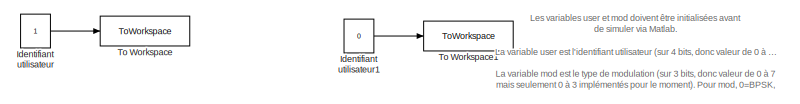
[diagram: root canvas - part 1/4, top left region]
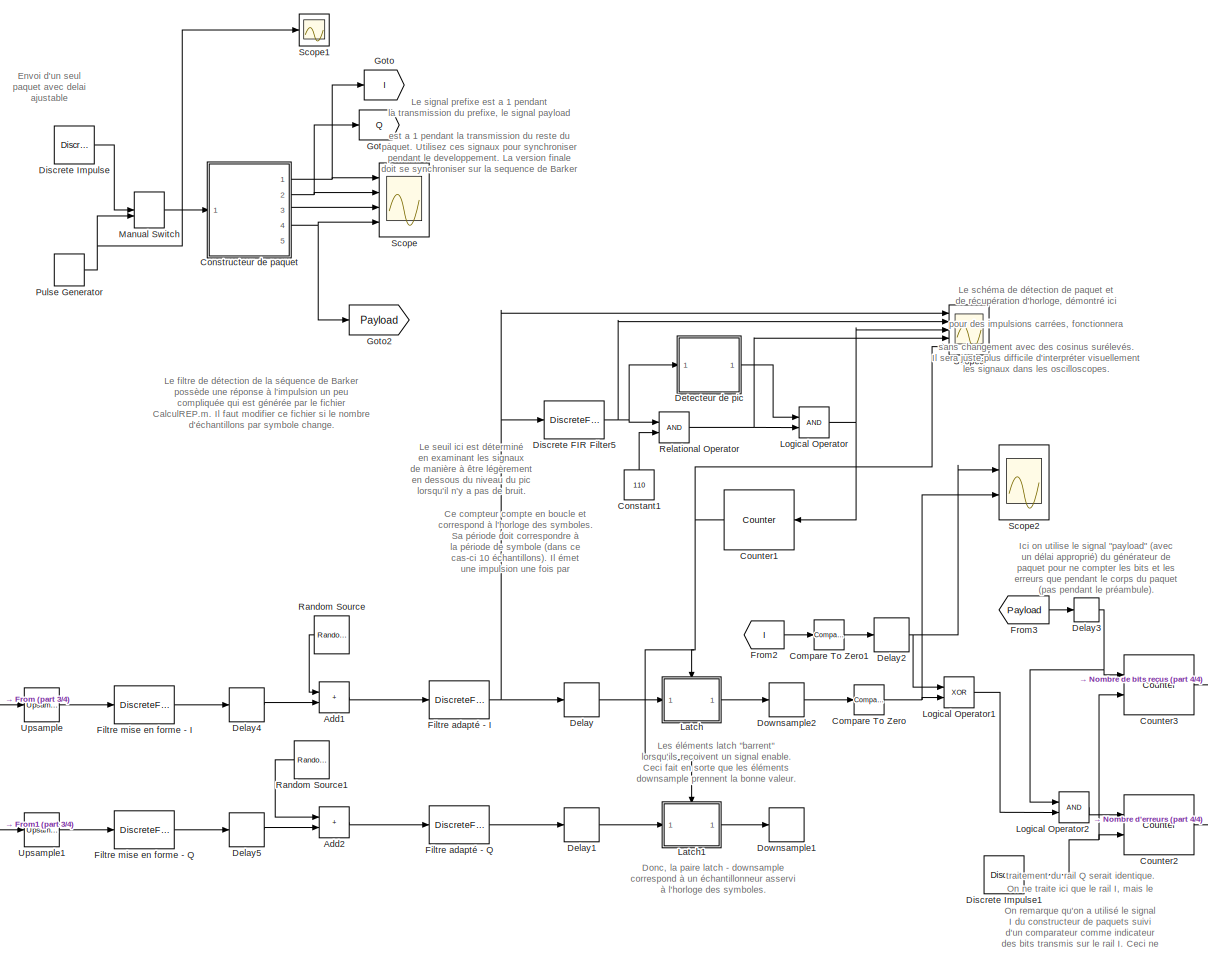
[diagram: root canvas - part 2/4, most of the canvas]
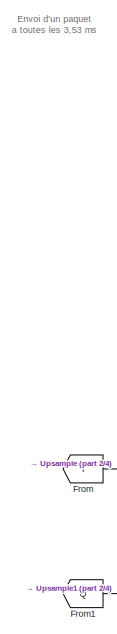
[diagram: root canvas - part 3/4, middle left region]
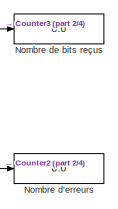
[diagram: root canvas - part 4/4, bottom right region]
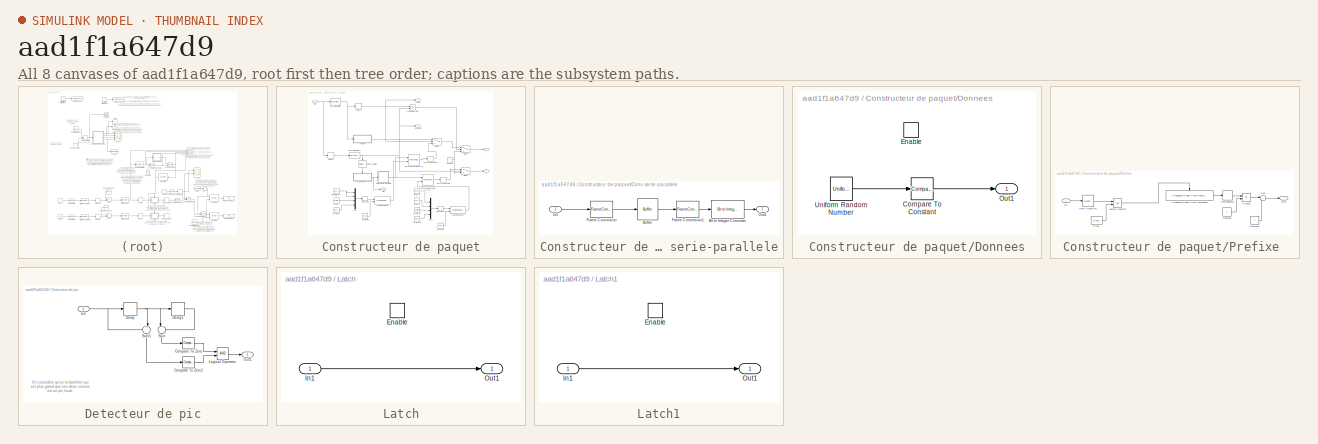
[diagram: thumbnail index - all 8 canvases of the model, root first then tree order]
MODEL slx_aad1f1a647d9
KIND model
CONFIG AbsTol = auto
CONFIG EnableMultiTasking = on
CONFIG FixedStep = auto
CONFIG MaxStep = auto
CONFIG MinStep = auto
CONFIG RelTol = 1e-3
CONFIG SampleTimeConstraint = Unconstrained
CONFIG SolverName = FixedStepDiscrete
CONFIG StartTime = 0.0
CONFIG StopTime = 4
BLOCK [Sum] Add1
  IconShape = rectangular
  Ports = [2, 1]
BLOCK [Sum] Add2
  IconShape = rectangular
  Ports = [2, 1]
BLOCK [Reference] Compare To Zero  REF=simulink/Logic and Bit
Operations/Compare
To Zero
  Ports = [1, 1]
  SourceBlock = simulink/Logic and Bit\nOperations/Compare\nTo Zero
  SourceProductBaseCode = SL
  SourceType = Compare To Zero
BLOCK [Reference] Compare To Zero1  REF=simulink/Logic and Bit
Operations/Compare
To Zero
  Ports = [1, 1]
  SourceBlock = simulink/Logic and Bit\nOperations/Compare\nTo Zero
  SourceProductBaseCode = SL
  SourceType = Compare To Zero
BLOCK [Constant] Constant1
  NameLocation = right
  SampleTime = -1
  Value = 110
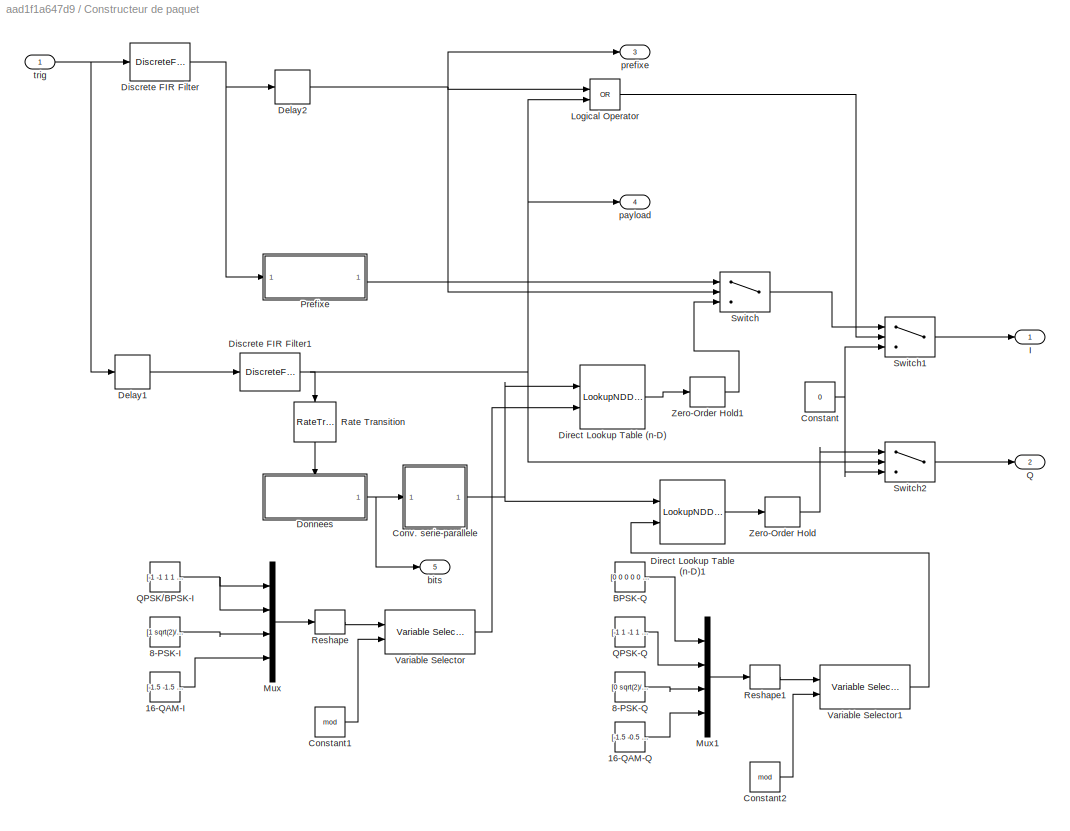
BLOCK [SubSystem] Constructeur de paquet
  Ports = [1, 5]
  RequestExecContextInheritance = off
BLOCK [Constant] Constructeur de paquet/16-QAM-I
  Value = [-1.5 -1.5 -1.5 -1.5 -0.5 -0.5 -0.5 -0.5 1.5 1.5 1.5 1.5 0.5 0.5 0.5 0.5]
BLOCK [Constant] Constructeur de paquet/16-QAM-Q
  Value = [-1.5 -0.5 1.5 0.5 -1.5 -0.5 1.5 0.5 -1.5 -0.5 1.5 0.5 -1.5 -0.5 1.5 0.5]
BLOCK [Constant] Constructeur de paquet/8-PSK-I
  Value = [1 sqrt(2)/2 -sqrt(2)/2 0 -sqrt(2)/2 0 -1 sqrt(2)/2 1 sqrt(2)/2 -sqrt(2)/2 0 -sqrt(2)/2 0 -1 sqrt(2)/2]
BLOCK [Constant] Constructeur de paquet/8-PSK-Q
  Value = [0 sqrt(2)/2 sqrt(2)/2 1 -sqrt(2)/2 -1 0 -sqrt(2)/2 0 sqrt(2)/2 sqrt(2)/2 1 -sqrt(2)/2 -1 0 -sqrt(2)/2]
BLOCK [Constant] Constructeur de paquet/BPSK-Q
  Value = [0 0 0 0 0 0 0 0 0 0 0 0 0 0 0 0]
BLOCK [Constant] Constructeur de paquet/Constant
  Value = 0
BLOCK [Constant] Constructeur de paquet/Constant1
  Value = mod
BLOCK [Constant] Constructeur de paquet/Constant2
  Value = mod
BLOCK [SubSystem] Constructeur de paquet/Conv. serie-parallele
  NameLocation = top
  Ports = [1, 1]
  RequestExecContextInheritance = off
BLOCK [Reference] Constructeur de paquet/Conv. serie-parallele/Bit to Integer Converter  REF=commutil2/Bit to Integer
Converter
  NameLocation = top
  Ports = [1, 1]
  SourceBlock = commutil2/Bit to Integer\nConverter
  SourceProductBaseCode = CM
  SourceType = Bit to Integer Converter
BLOCK [Buffer] Constructeur de paquet/Conv. serie-parallele/Buffer
  N = 4
  NameLocation = top
BLOCK [FrameConversion] Constructeur de paquet/Conv. serie-parallele/Frame Conversion
  Ports = [1, 1]
BLOCK [FrameConversion] Constructeur de paquet/Conv. serie-parallele/Frame Conversion1
  NameLocation = top
  OutFrame = Sample-based
  Ports = [1, 1]
BLOCK [Inport] Constructeur de paquet/Conv. serie-parallele/In1
  NameLocation = top
BLOCK [Outport] Constructeur de paquet/Conv. serie-parallele/Out1
  NameLocation = top
  VectorParamsAs1DForOutWhenUnconnected = off
BLOCK [Delay] Constructeur de paquet/Delay1
  DelayLength = 21
  InputPortMap = u0
  Ports = [1, 1]
BLOCK [Delay] Constructeur de paquet/Delay2
  DelayLength = 1
  InputPortMap = u0
  Ports = [1, 1]
BLOCK [LookupNDDirect] Constructeur de paquet/Direct Lookup Table (n-D)
  NumberOfTableDimensions = 1
  Ports = [2, 1]
  Table = [0 2 3 2]
  TableIsInput = on
BLOCK [LookupNDDirect] Constructeur de paquet/Direct Lookup Table (n-D)1
  NumberOfTableDimensions = 1
  Ports = [2, 1]
  Table = [0 2 3 2]
  TableIsInput = on
BLOCK [DiscreteFir] Constructeur de paquet/Discrete FIR Filter
  Coefficients = ones(1,20)
  InputPortMap = u0
  OutputPortMap = o0
  Ports = [1, 1]
BLOCK [DiscreteFir] Constructeur de paquet/Discrete FIR Filter1
  Coefficients = ones(1,128)
  InputPortMap = u0
  OutputPortMap = o0
  Ports = [1, 1]
BLOCK [SubSystem] Constructeur de paquet/Donnees
  Ports = [0, 1, 1]
  RequestExecContextInheritance = off
  TreatAsAtomicUnit = on
BLOCK [Reference] Constructeur de paquet/Donnees/Compare To Constant  REF=simulink/Logic and Bit
Operations/Compare
To Constant
  Ports = [1, 1]
  SourceBlock = simulink/Logic and Bit\nOperations/Compare\nTo Constant
  SourceProductBaseCode = SL
  SourceType = Compare To Constant
BLOCK [EnablePort] Constructeur de paquet/Donnees/Enable
  Ports = []
BLOCK [Outport] Constructeur de paquet/Donnees/Out1
  VectorParamsAs1DForOutWhenUnconnected = off
BLOCK [UniformRandomNumber] Constructeur de paquet/Donnees/Uniform Random Number
  SampleTime = 1/340000
  Seed = 17
BLOCK [Outport] Constructeur de paquet/I
  VectorParamsAs1DForOutWhenUnconnected = off
BLOCK [Logic] Constructeur de paquet/Logical Operator
  AllPortsSameDT = off
  Operator = OR
  OutDataTypeStr = boolean
  Ports = [2, 1]
BLOCK [Mux] Constructeur de paquet/Mux
  DisplayOption = bar
  Ports = [4, 1]
BLOCK [Mux] Constructeur de paquet/Mux1
  DisplayOption = bar
  Ports = [4, 1]
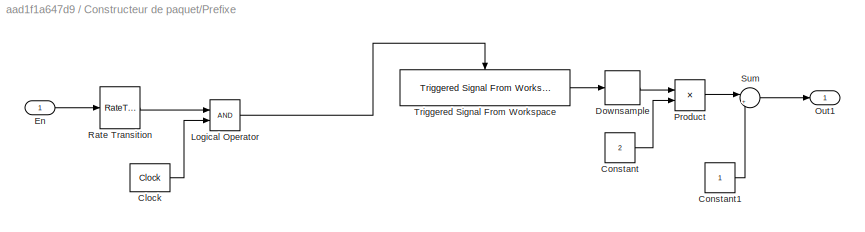
BLOCK [SubSystem] Constructeur de paquet/Prefixe 
  Ports = [1, 1]
  RequestExecContextInheritance = off
  TreatAsAtomicUnit = on
BLOCK [Reference] Constructeur de paquet/Prefixe /Clock  REF=simulink_extras/Flip Flops/Clock
  Ports = [0, 1]
  SourceBlock = simulink_extras/Flip Flops/Clock
  SourceProductBaseCode = SL
  SourceType = Digital clock
BLOCK [Constant] Constructeur de paquet/Prefixe /Constant
  Value = 2
BLOCK [Constant] Constructeur de paquet/Prefixe /Constant1
BLOCK [DownSample] Constructeur de paquet/Prefixe /Downsample
  InputProcessing = Elements as channels (sample based)
  RateOptions = Allow multirate processing
  UserDataPersistent = on
BLOCK [Inport] Constructeur de paquet/Prefixe /En
BLOCK [Logic] Constructeur de paquet/Prefixe /Logical Operator
  AllPortsSameDT = off
  OutDataTypeStr = boolean
  Ports = [2, 1]
BLOCK [Outport] Constructeur de paquet/Prefixe /Out1
  VectorParamsAs1DForOutWhenUnconnected = off
BLOCK [Product] Constructeur de paquet/Prefixe /Product
  Ports = [2, 1]
BLOCK [RateTransition] Constructeur de paquet/Prefixe /Rate Transition
  OutPortSampleTime = 1/170000
BLOCK [Sum] Constructeur de paquet/Prefixe /Sum
  Inputs = |+-
  Ports = [2, 1]
BLOCK [Reference] Constructeur de paquet/Prefixe /Triggered Signal From Workspace  REF=dspsigops/Triggered Signal
From Workspace
  Ports = [0, 1, 0, 1]
  SourceBlock = dspsigops/Triggered Signal\nFrom Workspace
  SourceProductBaseCode = DS
  SourceType = Triggered Signal From Workspace
BLOCK [Outport] Constructeur de paquet/Q
  Port = 2
  VectorParamsAs1DForOutWhenUnconnected = off
BLOCK [Constant] Constructeur de paquet/QPSK-Q
  Value = [-1 1 -1 1 -1 1 -1 1 -1 1 -1 1 -1 1 -1 1]
BLOCK [Constant] Constructeur de paquet/QPSK//BPSK-I
  Value = [-1 -1 1 1 -1 -1 1 1 -1 -1 1 1 -1 -1 1 1 ]
BLOCK [RateTransition] Constructeur de paquet/Rate Transition
  NameLocation = left
BLOCK [Reshape] Constructeur de paquet/Reshape
  OutputDimensionality = Customize
  OutputDimensions = [16,4]
  Ports = [1, 1]
BLOCK [Reshape] Constructeur de paquet/Reshape1
  OutputDimensionality = Customize
  OutputDimensions = [16,4]
  Ports = [1, 1]
BLOCK [Switch] Constructeur de paquet/Switch
  Criteria = u2 > Threshold
  InputSameDT = off
  SaturateOnIntegerOverflow = off
BLOCK [Switch] Constructeur de paquet/Switch1
  Criteria = u2 > Threshold
  InputSameDT = off
  SaturateOnIntegerOverflow = off
BLOCK [Switch] Constructeur de paquet/Switch2
  Criteria = u2 > Threshold
  InputSameDT = off
  SaturateOnIntegerOverflow = off
BLOCK [Reference] Constructeur de paquet/Variable Selector  REF=dspindex/Variable
Selector
  Ports = [2, 1]
  SourceBlock = dspindex/Variable\nSelector
  SourceProductBaseCode = DS
  SourceType = Variable Selector
BLOCK [Reference] Constructeur de paquet/Variable Selector1  REF=dspindex/Variable
Selector
  Ports = [2, 1]
  SourceBlock = dspindex/Variable\nSelector
  SourceProductBaseCode = DS
  SourceType = Variable Selector
BLOCK [ZeroOrderHold] Constructeur de paquet/Zero-Order Hold
  SampleTime = 1/85000
BLOCK [ZeroOrderHold] Constructeur de paquet/Zero-Order Hold1
  SampleTime = 1/85000
BLOCK [Outport] Constructeur de paquet/bits
  Port = 5
  VectorParamsAs1DForOutWhenUnconnected = off
BLOCK [Outport] Constructeur de paquet/payload
  Port = 4
  VectorParamsAs1DForOutWhenUnconnected = off
BLOCK [Outport] Constructeur de paquet/prefixe
  Port = 3
  VectorParamsAs1DForOutWhenUnconnected = off
BLOCK [Inport] Constructeur de paquet/trig
BLOCK [Reference] Counter1  REF=dspswit3/Counter
  Ports = [1, 1]
  SourceBlock = dspswit3/Counter
  SourceProductBaseCode = DS
  SourceType = Counter
BLOCK [Reference] Counter2  REF=dspswit3/Counter
  Ports = [2, 1]
  SourceBlock = dspswit3/Counter
  SourceProductBaseCode = DS
  SourceType = Counter
BLOCK [Reference] Counter3  REF=dspswit3/Counter
  Ports = [2, 1]
  SourceBlock = dspswit3/Counter
  SourceProductBaseCode = DS
  SourceType = Counter
BLOCK [Delay] Delay
  DelayLength = 1
  InitialCondition = 0
  InputPortMap = u0
  Ports = [1, 1]
BLOCK [Delay] Delay1
  DelayLength = 1
  InitialCondition = 0
  InputPortMap = u0
  Ports = [1, 1]
BLOCK [Delay] Delay2
  DelayLength = 3
  InitialCondition = 0
  InputPortMap = u0
  Ports = [1, 1]
BLOCK [Delay] Delay3
  DelayLength = 3
  InitialCondition = 0
  InputPortMap = u0
  Ports = [1, 1]
BLOCK [Delay] Delay4
  DelayLength = 1
  InitialCondition = 0
  InputPortMap = u0
  Ports = [1, 1]
BLOCK [Delay] Delay5
  DelayLength = 1
  InitialCondition = 0
  InputPortMap = u0
  Ports = [1, 1]
BLOCK [SubSystem] Detecteur de pic
  Ports = [1, 1]
  RequestExecContextInheritance = off
BLOCK [Reference] Detecteur de pic/Compare To Zero  REF=simulink/Logic and Bit
Operations/Compare
To Zero
  Ports = [1, 1]
  SourceBlock = simulink/Logic and Bit\nOperations/Compare\nTo Zero
  SourceProductBaseCode = SL
  SourceType = Compare To Zero
BLOCK [Reference] Detecteur de pic/Compare To Zero1  REF=simulink/Logic and Bit
Operations/Compare
To Zero
  Ports = [1, 1]
  SourceBlock = simulink/Logic and Bit\nOperations/Compare\nTo Zero
  SourceProductBaseCode = SL
  SourceType = Compare To Zero
BLOCK [Delay] Detecteur de pic/Delay
  DelayLength = 1
  InitialCondition = 0
  InputPortMap = u0
  Ports = [1, 1]
BLOCK [Delay] Detecteur de pic/Delay1
  DelayLength = 1
  InitialCondition = 0
  InputPortMap = u0
  Ports = [1, 1]
BLOCK [Inport] Detecteur de pic/In1
BLOCK [Logic] Detecteur de pic/Logical Operator
  AllPortsSameDT = off
  OutDataTypeStr = boolean
  Ports = [2, 1]
BLOCK [Outport] Detecteur de pic/Out1
BLOCK [Sum] Detecteur de pic/Sum
  Inputs = |+-
  NameLocation = left
  Ports = [2, 1]
BLOCK [Sum] Detecteur de pic/Sum1
  Inputs = -+|
  NameLocation = left
  Ports = [2, 1]
BLOCK [DiscreteFir] Discrete FIR Filter5
  Coefficients = rep
  InputPortMap = u0
  OutputPortMap = o0
  Ports = [1, 1]
BLOCK [Reference] Discrete Impulse  REF=dspsrcs4/Discrete 
Impulse
  Ports = [0, 1]
  SourceBlock = dspsrcs4/Discrete \nImpulse
  SourceProductBaseCode = DS
  SourceType = Discrete Impulse
BLOCK [Reference] Discrete Impulse1  REF=dspsrcs4/Discrete 
Impulse
  Ports = [0, 1]
  SourceBlock = dspsrcs4/Discrete \nImpulse
  SourceProductBaseCode = DS
  SourceType = Discrete Impulse
BLOCK [DownSample] Downsample1
  InputProcessing = Elements as channels (sample based)
  N = 10
  RateOptions = Allow multirate processing
  UserDataPersistent = on
BLOCK [DownSample] Downsample2
  InputProcessing = Elements as channels (sample based)
  N = 10
  RateOptions = Allow multirate processing
  UserDataPersistent = on
BLOCK [DiscreteFir] Filtre adapté - I
  Coefficients = ones(1,10)
  InputPortMap = u0
  OutputPortMap = o0
  Ports = [1, 1]
BLOCK [DiscreteFir] Filtre adapté - Q
  Coefficients = ones(1,10)
  InputPortMap = u0
  OutputPortMap = o0
  Ports = [1, 1]
BLOCK [DiscreteFir] Filtre mise en forme - I
  Coefficients = ones(1,10)
  InputPortMap = u0
  OutputPortMap = o0
  Ports = [1, 1]
BLOCK [DiscreteFir] Filtre mise en forme - Q
  Coefficients = ones(1,10)
  InputPortMap = u0
  OutputPortMap = o0
  Ports = [1, 1]
BLOCK [From] From
  GotoTag = I
BLOCK [From] From1
  GotoTag = Q
BLOCK [From] From2
  GotoTag = I
BLOCK [From] From3
  GotoTag = Payload
BLOCK [Goto] Goto
  GotoTag = I
BLOCK [Goto] Goto1
  GotoTag = Q
BLOCK [Goto] Goto2
  GotoTag = Payload
BLOCK [Constant] Identifiant utilisateur
  VectorParams1D = off
BLOCK [Constant] Identifiant utilisateur1
  Value = 0
  VectorParams1D = off
BLOCK [SubSystem] Latch
  Ports = [1, 1, 1]
  RequestExecContextInheritance = off
  TreatAsAtomicUnit = on
BLOCK [EnablePort] Latch/Enable
  Ports = []
BLOCK [Inport] Latch/In1
BLOCK [Outport] Latch/Out1
  VectorParamsAs1DForOutWhenUnconnected = off
BLOCK [SubSystem] Latch1
  Ports = [1, 1, 1]
  RequestExecContextInheritance = off
  TreatAsAtomicUnit = on
BLOCK [EnablePort] Latch1/Enable
  Ports = []
BLOCK [Inport] Latch1/In1
BLOCK [Outport] Latch1/Out1
  VectorParamsAs1DForOutWhenUnconnected = off
BLOCK [Logic] Logical Operator
  AllPortsSameDT = off
  OutDataTypeStr = boolean
  Ports = [2, 1]
BLOCK [Logic] Logical Operator1
  AllPortsSameDT = off
  Operator = XOR
  OutDataTypeStr = boolean
  Ports = [2, 1]
BLOCK [Logic] Logical Operator2
  AllPortsSameDT = off
  OutDataTypeStr = boolean
  Ports = [2, 1]
BLOCK [ManualSwitch] Manual Switch
  CurrentSetting = 0
BLOCK [Display] Nombre d'erreurs
  Decimation = 1
  Format = long
  Ports = [1]
BLOCK [Display] Nombre de bits reçus
  Decimation = 1
  Format = long
  Ports = [1]
BLOCK [DiscretePulseGenerator] Pulse Generator
  Period = 300
  Ports = [0, 1]
  SampleTime = 1/85000
BLOCK [Reference] Random Source  REF=dspsrcs4/Random
Source
  Ports = [0, 1]
  SourceBlock = dspsrcs4/Random\nSource
  SourceProductBaseCode = DS
  SourceType = Random Source
  UserDataPersistent = on
BLOCK [Reference] Random Source1  REF=dspsrcs4/Random
Source
  Ports = [0, 1]
  SourceBlock = dspsrcs4/Random\nSource
  SourceProductBaseCode = DS
  SourceType = Random Source
  UserDataPersistent = on
BLOCK [RelationalOperator] Relational Operator
  InputSameDT = off
  OutDataTypeStr = boolean
  Ports = [2, 1]
BLOCK [Scope] Scope
  Floating = off
  NumInputPorts = 4
  Ports = [4]
  ScopeSpecificationString = Simulink.scopes.TimeScopeBlockCfg('CurrentConfiguration', extmgr.ConfigurationSet(extmgr.Configuration('Core','General UI',true),extmgr.Configuration('Core','Source UI',true),extmgr.Configuration('Sources','WiredSimulink',true,'DataLoggingSaveFormat','StructureWithTime','DataLoggingLimitDataPoints',true,'DataLoggingDecimation','1','DataLoggingDecimateData',true,'DataLoggingVariableName','ScopeData...<+3732ch>
BLOCK [Scope] Scope1
  Floating = off
  NumInputPorts = 1
  Ports = [1]
  ScopeSpecificationString = Simulink.scopes.TimeScopeBlockCfg('CurrentConfiguration', extmgr.ConfigurationSet(extmgr.Configuration('Core','General UI',true),extmgr.Configuration('Core','Source UI',true),extmgr.Configuration('Sources','WiredSimulink',true),extmgr.Configuration('Visuals','Time Domain',true,'SerializedDisplays',{struct('MinYLimReal','-0.125','MaxYLimReal','1.125','YLabelReal','','MinYLimMag','0.00000','MaxYLimM...<+1354ch>
BLOCK [Scope] Scope2
  Floating = off
  NumInputPorts = 2
  Ports = [2]
  ScopeSpecificationString = Simulink.scopes.TimeScopeBlockCfg('CurrentConfiguration', extmgr.ConfigurationSet(extmgr.Configuration('Core','General UI',true),extmgr.Configuration('Core','Source UI',true),extmgr.Configuration('Sources','WiredSimulink',true,'DataLoggingSaveFormat','StructureWithTime','DataLoggingDecimation','1','DataLoggingDecimateData',true,'DataLoggingVariableName','ScopeData2'),extmgr.Configuration('Visuals'...<+2297ch>
BLOCK [Scope] Scope5
  Floating = off
  NumInputPorts = 5
  Ports = [5]
  ScopeSpecificationString = Simulink.scopes.TimeScopeBlockCfg('CurrentConfiguration', extmgr.ConfigurationSet(extmgr.Configuration('Core','General UI',true),extmgr.Configuration('Core','Source UI',true),extmgr.Configuration('Sources','WiredSimulink',true,'DataLogging',true,'DataLoggingVariableName','ScopeData1','DataLoggingSaveFormat','StructureWithTime','DataLoggingDecimation','1','DataLoggingDecimateData',true),extmgr.Conf...<+3745ch>
BLOCK [ToWorkspace] To Workspace
  FixptAsFi = on
  MaxDataPoints = inf
  Ports = [1]
  SampleTime = -1
  Save2DSignal = 2-D array (concatenate along first dimension)
  VariableName = user
BLOCK [ToWorkspace] To Workspace1
  FixptAsFi = on
  MaxDataPoints = inf
  Ports = [1]
  SampleTime = -1
  Save2DSignal = 2-D array (concatenate along first dimension)
  VariableName = mod
BLOCK [Reference] Upsample  REF=dspsigops/Upsample
  Ports = [1, 1]
  SourceBlock = dspsigops/Upsample
  SourceProductBaseCode = DS
  SourceType = Upsample
  UserDataPersistent = on
BLOCK [Reference] Upsample1  REF=dspsigops/Upsample
  Ports = [1, 1]
  SourceBlock = dspsigops/Upsample
  SourceProductBaseCode = DS
  SourceType = Upsample
  UserDataPersistent = on
ANNOTATION (root): Ce compteur compte en boucle et correspond à l'horloge des symboles. Sa période doit correspondre à la période de symbole (dans ce cas-ci 10 échantillons). Il émet une impulsion une fois par période en passant par la valeur 0. Il est remis à zéro par le pic de détection de début de paquet.
ANNOTATION (root): Donc, la paire latch - downsample correspond à un échantillonneur asservi à l'horloge des symboles.
ANNOTATION (root): Envoi d'un paquet a toutes les 3,53 ms
ANNOTATION (root): Envoi d'un seul paquet avec delai ajustable
ANNOTATION (root): Ici on utilise le signal "payload" (avec un délai approprié) du générateur de paquet pour ne compter les bits et les erreurs que pendant le corps du paquet (pas pendant le préambule).
ANNOTATION (root): Le filtre de détection de la séquence de Barker possède une réponse à l'impulsion un peu compliquée qui est générée par le fichier CalculREP.m. Il faut modifier ce fichier si le nombre d'échantillons par symbole change.
ANNOTATION (root): Le schéma de détection de paquet et de récupération d'horloge, démontré ici pour des impulsions carrées, fonctionnera sans changement avec des cosinus surélevés. Il sera juste plus difficile d'interpréter visuellement les signaux dans les oscilloscopes.
ANNOTATION (root): Le seuil ici est déterminé en examinant les signaux de manière à être légèrement en dessous du niveau du pic lorsqu'il n'y a pas de bruit.
ANNOTATION (root): Le signal prefixe est a 1 pendant la transmission du prefixe, le signal payload est a 1 pendant la transmission du reste du paquet. Utilisez ces signaux pour synchroniser pendant le developpement. La version finale doit se synchroniser sur la sequence de Barker
ANNOTATION (root): Les variables user et mod doivent être initialisées avant de simuler via Matlab. La variable user est l'identifiant utilisateur (sur 4 bits, donc valeur de 0 à 15). La variable mod est le type de modulation (sur 3 bits, donc valeur de 0 à 7 mais seulement 0 à 3 implémentés pour le moment). Pour mod, 0=BPSK, 1=QPSK, 2=8-PSK et 3=16-QAM. Vous pouvez aussi initaliser ces variables via les constantes ...<+181ch>
ANNOTATION (root): Les éléments latch "barrent" lorsqu'ils recoivent un signal enable. Ceci fait en sorte que les éléments downsample prennent la bonne valeur.
ANNOTATION (root): On ne traite ici que le rail I, mais le traitement du rail Q serait identique. On remarque qu'on a utilisé le signal I du constructeur de paquets suivi d'un comparateur comme indicateur des bits transmis sur le rail I. Ceci ne peut fonctionner qu'en BPSK ou QPSK. Dans le cas général, il faudrait utiliser la sortie "bits" du générateur.
ANNOTATION Detecteur de pic: On considère qu'un échantillon qui est plus grand que ses deux voisins est un pic local.
LINE Add1:1 -> Filtre adapté - I:1
LINE Add2:1 -> Filtre adapté - Q:1
LINE Compare To Zero1:1 -> Delay2:1
NET Compare To Zero:1 -> Logical Operator1:2, Scope2:2
LINE Constant1:1 -> Relational Operator:2
LINE Constructeur de paquet/16-QAM-I:1 -> Constructeur de paquet/Mux:4
LINE Constructeur de paquet/16-QAM-Q:1 -> Constructeur de paquet/Mux1:4
LINE Constructeur de paquet/8-PSK-I:1 -> Constructeur de paquet/Mux:3
LINE Constructeur de paquet/8-PSK-Q:1 -> Constructeur de paquet/Mux1:3
LINE Constructeur de paquet/BPSK-Q:1 -> Constructeur de paquet/Mux1:1
LINE Constructeur de paquet/Constant1:1 -> Constructeur de paquet/Variable Selector:2
LINE Constructeur de paquet/Constant2:1 -> Constructeur de paquet/Variable Selector1:2
NET Constructeur de paquet/Constant:1 -> Constructeur de paquet/Switch1:3, Constructeur de paquet/Switch2:3
LINE Constructeur de paquet/Conv. serie-parallele/Bit to Integer Converter:1 -> Constructeur de paquet/Conv. serie-parallele/Out1:1
LINE Constructeur de paquet/Conv. serie-parallele/Buffer:1 -> Constructeur de paquet/Conv. serie-parallele/Frame Conversion1:1
LINE Constructeur de paquet/Conv. serie-parallele/Frame Conversion1:1 -> Constructeur de paquet/Conv. serie-parallele/Bit to Integer Converter:1
LINE Constructeur de paquet/Conv. serie-parallele/Frame Conversion:1 -> Constructeur de paquet/Conv. serie-parallele/Buffer:1
LINE Constructeur de paquet/Conv. serie-parallele/In1:1 -> Constructeur de paquet/Conv. serie-parallele/Frame Conversion:1
NET Constructeur de paquet/Conv. serie-parallele:1 -> Constructeur de paquet/Direct Lookup Table (n-D)1:1, Constructeur de paquet/Direct Lookup Table (n-D):1
LINE Constructeur de paquet/Delay1:1 -> Constructeur de paquet/Discrete FIR Filter1:1
NET Constructeur de paquet/Delay2:1 -> Constructeur de paquet/Logical Operator:1, Constructeur de paquet/Switch:2, Constructeur de paquet/prefixe:1
LINE Constructeur de paquet/Direct Lookup Table (n-D)1:1 -> Constructeur de paquet/Zero-Order Hold:1
LINE Constructeur de paquet/Direct Lookup Table (n-D):1 -> Constructeur de paquet/Zero-Order Hold1:1
NET Constructeur de paquet/Discrete FIR Filter1:1 -> Constructeur de paquet/Logical Operator:2, Constructeur de paquet/Rate Transition:1, Constructeur de paquet/Switch2:2, Constructeur de paquet/payload:1
NET Constructeur de paquet/Discrete FIR Filter:1 -> Constructeur de paquet/Delay2:1, Constructeur de paquet/Prefixe :1
LINE Constructeur de paquet/Donnees/Compare To Constant:1 -> Constructeur de paquet/Donnees/Out1:1
LINE Constructeur de paquet/Donnees/Uniform Random Number:1 -> Constructeur de paquet/Donnees/Compare To Constant:1
NET Constructeur de paquet/Donnees:1 -> Constructeur de paquet/Conv. serie-parallele:1, Constructeur de paquet/bits:1
LINE Constructeur de paquet/Logical Operator:1 -> Constructeur de paquet/Switch1:2
LINE Constructeur de paquet/Mux1:1 -> Constructeur de paquet/Reshape1:1
LINE Constructeur de paquet/Mux:1 -> Constructeur de paquet/Reshape:1
LINE Constructeur de paquet/Prefixe /Clock:1 -> Constructeur de paquet/Prefixe /Logical Operator:2
LINE Constructeur de paquet/Prefixe /Constant1:1 -> Constructeur de paquet/Prefixe /Sum:2
LINE Constructeur de paquet/Prefixe /Constant:1 -> Constructeur de paquet/Prefixe /Product:2
LINE Constructeur de paquet/Prefixe /Downsample:1 -> Constructeur de paquet/Prefixe /Product:1
LINE Constructeur de paquet/Prefixe /En:1 -> Constructeur de paquet/Prefixe /Rate Transition:1
LINE Constructeur de paquet/Prefixe /Logical Operator:1 -> Constructeur de paquet/Prefixe /Triggered Signal From Workspace:trigger
LINE Constructeur de paquet/Prefixe /Product:1 -> Constructeur de paquet/Prefixe /Sum:1
LINE Constructeur de paquet/Prefixe /Rate Transition:1 -> Constructeur de paquet/Prefixe /Logical Operator:1
LINE Constructeur de paquet/Prefixe /Sum:1 -> Constructeur de paquet/Prefixe /Out1:1
LINE Constructeur de paquet/Prefixe /Triggered Signal From Workspace:1 -> Constructeur de paquet/Prefixe /Downsample:1
LINE Constructeur de paquet/Prefixe :1 -> Constructeur de paquet/Switch:1
LINE Constructeur de paquet/QPSK-Q:1 -> Constructeur de paquet/Mux1:2
NET Constructeur de paquet/QPSK//BPSK-I:1 -> Constructeur de paquet/Mux:1, Constructeur de paquet/Mux:2
LINE Constructeur de paquet/Rate Transition:1 -> Constructeur de paquet/Donnees:enable
LINE Constructeur de paquet/Reshape1:1 -> Constructeur de paquet/Variable Selector1:1
LINE Constructeur de paquet/Reshape:1 -> Constructeur de paquet/Variable Selector:1
LINE Constructeur de paquet/Switch1:1 -> Constructeur de paquet/I:1
LINE Constructeur de paquet/Switch2:1 -> Constructeur de paquet/Q:1
LINE Constructeur de paquet/Switch:1 -> Constructeur de paquet/Switch1:1
LINE Constructeur de paquet/Variable Selector1:1 -> Constructeur de paquet/Direct Lookup Table (n-D)1:2
LINE Constructeur de paquet/Variable Selector:1 -> Constructeur de paquet/Direct Lookup Table (n-D):2
LINE Constructeur de paquet/Zero-Order Hold1:1 -> Constructeur de paquet/Switch:3
LINE Constructeur de paquet/Zero-Order Hold:1 -> Constructeur de paquet/Switch2:1
NET Constructeur de paquet/trig:1 -> Constructeur de paquet/Delay1:1, Constructeur de paquet/Discrete FIR Filter:1
NET Constructeur de paquet:1 -> Goto:1, Scope:1
NET Constructeur de paquet:2 -> Goto1:1, Scope:2
LINE Constructeur de paquet:3 -> Scope:3
NET Constructeur de paquet:4 -> Goto2:1, Scope:4
NET Counter1:1 -> Latch1:enable, Latch:enable, Scope5:5
LINE Counter2:1 -> Nombre d'erreurs:1
LINE Counter3:1 -> Nombre de bits reçus:1
LINE Delay1:1 -> Latch1:1
NET Delay2:1 -> Logical Operator1:1, Scope2:1
NET Delay3:1 -> Counter3:1, Logical Operator2:1
LINE Delay4:1 -> Add1:2
LINE Delay5:1 -> Add2:2
LINE Delay:1 -> Latch:1
LINE Detecteur de pic/Compare To Zero1:1 -> Detecteur de pic/Logical Operator:2
LINE Detecteur de pic/Compare To Zero:1 -> Detecteur de pic/Logical Operator:1
LINE Detecteur de pic/Delay1:1 -> Detecteur de pic/Sum:2
NET Detecteur de pic/Delay:1 -> Detecteur de pic/Delay1:1, Detecteur de pic/Sum1:2, Detecteur de pic/Sum:1
NET Detecteur de pic/In1:1 -> Detecteur de pic/Delay:1, Detecteur de pic/Sum1:1
LINE Detecteur de pic/Logical Operator:1 -> Detecteur de pic/Out1:1
LINE Detecteur de pic/Sum1:1 -> Detecteur de pic/Compare To Zero1:1
LINE Detecteur de pic/Sum:1 -> Detecteur de pic/Compare To Zero:1
LINE Detecteur de pic:1 -> Logical Operator:1
NET Discrete FIR Filter5:1 -> Detecteur de pic:1, Relational Operator:1, Scope5:2
NET Discrete Impulse1:1 -> Counter2:2, Counter3:2
LINE Discrete Impulse:1 -> Manual Switch:1
LINE Downsample2:1 -> Compare To Zero:1
NET Filtre adapté - I:1 -> Delay:1, Discrete FIR Filter5:1, Scope5:1
LINE Filtre adapté - Q:1 -> Delay1:1
LINE Filtre mise en forme - I:1 -> Delay4:1
LINE Filtre mise en forme - Q:1 -> Delay5:1
LINE From1:1 -> Upsample1:1
LINE From2:1 -> Compare To Zero1:1
LINE From3:1 -> Delay3:1
LINE From:1 -> Upsample:1
LINE Identifiant utilisateur1:1 -> To Workspace1:1
LINE Identifiant utilisateur:1 -> To Workspace:1
LINE Latch/In1:1 -> Latch/Out1:1
LINE Latch1/In1:1 -> Latch1/Out1:1
LINE Latch1:1 -> Downsample1:1
LINE Latch:1 -> Downsample2:1
LINE Logical Operator1:1 -> Logical Operator2:2
LINE Logical Operator2:1 -> Counter2:1
NET Logical Operator:1 -> Counter1:1, Scope5:3
LINE Manual Switch:1 -> Constructeur de paquet:1
NET Pulse Generator:1 -> Manual Switch:2, Scope1:1
LINE Random Source1:1 -> Add2:1
LINE Random Source:1 -> Add1:1
NET Relational Operator:1 -> Logical Operator:2, Scope5:4
LINE Upsample1:1 -> Filtre mise en forme - Q:1
LINE Upsample:1 -> Filtre mise en forme - I:1
note: NET lines group one-source signal fan-out (src -> all destinations, sorted); 1:1 wires keep LINE
